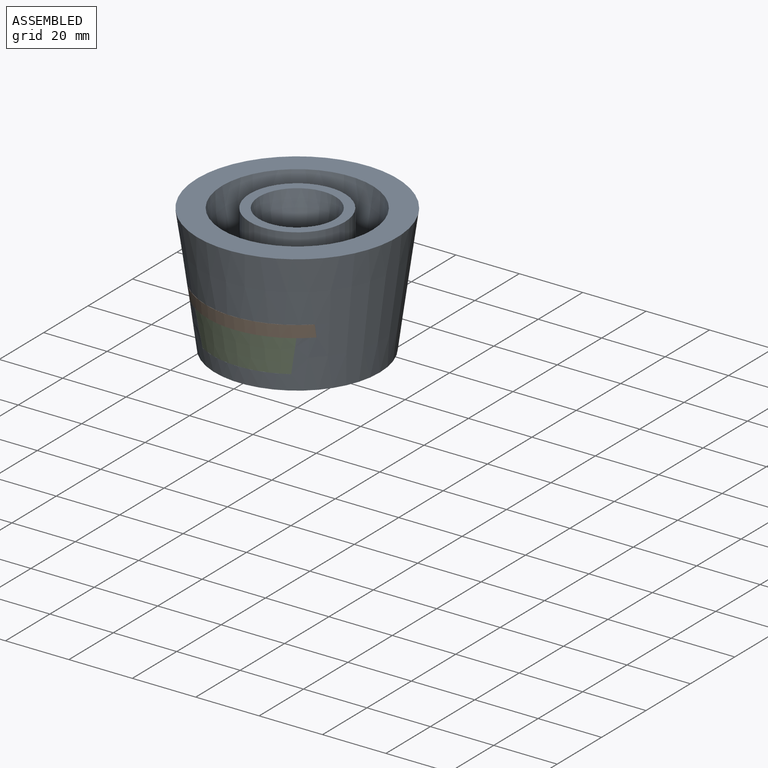
[diagram: assembled view]
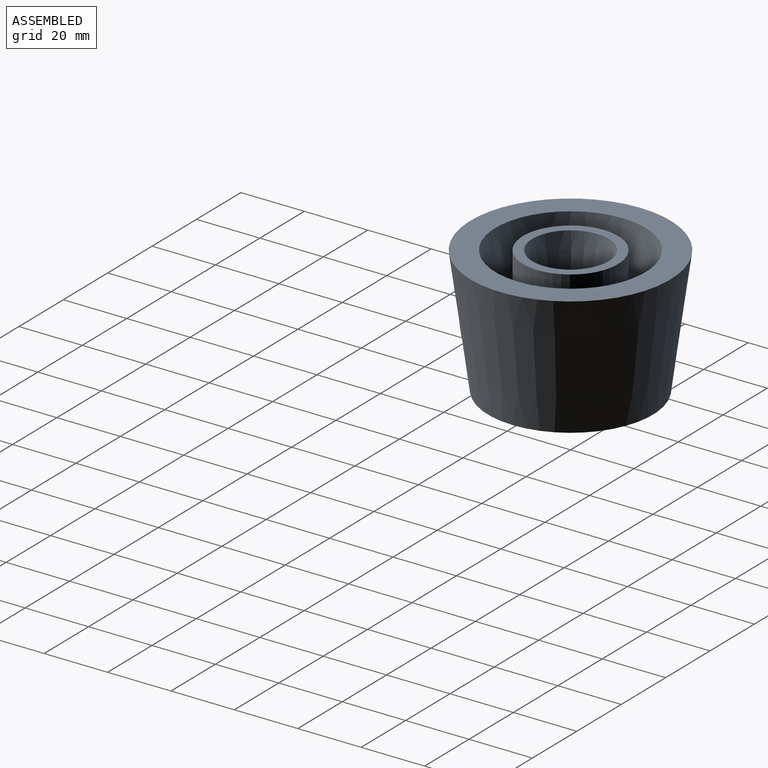
[diagram: assembled view, second angle]
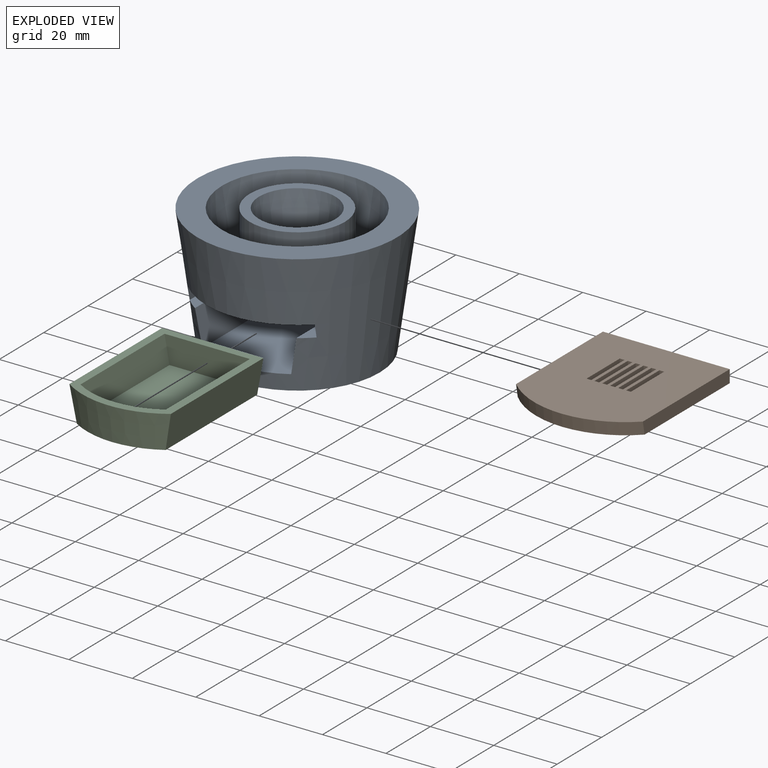
[diagram: exploded view]
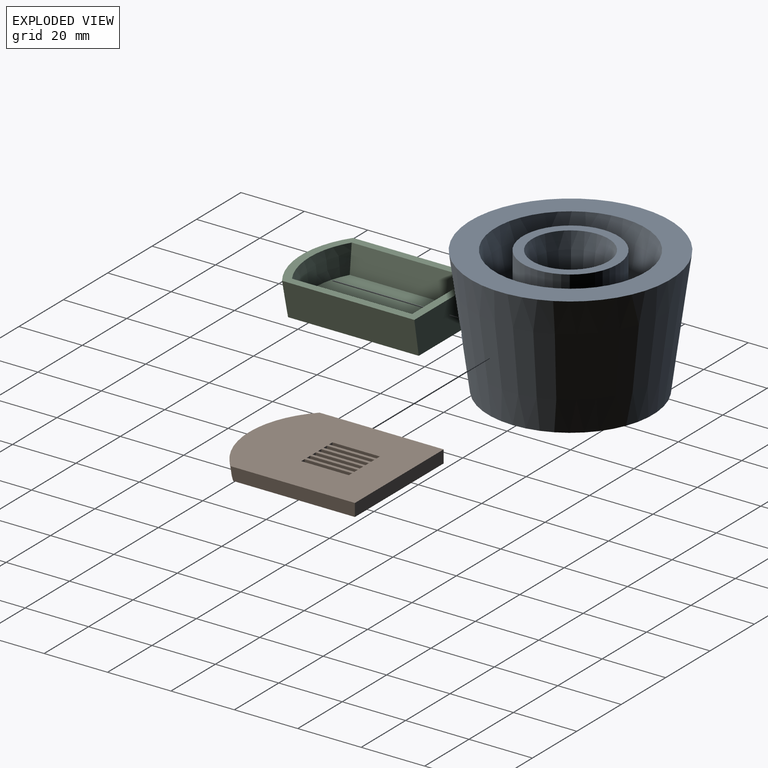
[diagram: exploded view, second angle]
ASSEMBLY  parts=3 mates=4
PART A: 17 faces, bbox 63x63x40 mm
  f0: cone r=7mm half-angle=9.5deg, axis (0,0,1), area 1318.7mm2, adj f1,f14
  f1: plane 30x30mm, normal (0,0,1), area 252.6mm2, adj f0,f2
  f2: cylinder r=15mm len=30mm, axis (0,0,-1), area 1589mm2, adj f1,f3
  f3: plane 41.65x41.65mm, normal (0,0,1), area 655.8mm2, adj f2,f4
  f4: cone r=20.83mm half-angle=9.6deg, axis (0,0,1), area 2390.7mm2, adj f3,f5
  f5: plane 63x63mm, normal (0,0,1), area 1356mm2, adj f4,f6
  f6: cone r=31.5mm half-angle=7.8deg, axis (0,0,1), area 6762.1mm2, adj f5,f7,f8,f9,f10,f11,f12,f13
  f7: plane 52x52mm, normal (0,0,-1), area 2123.7mm2, adj f6
  f8: plane 36.72x4mm, normal (0,0,1), area 140.6mm2, adj f6,f9,f15,f16
  f9: plane 36.72x11mm, normal (0.98,0,0.18), area 407.8mm2, adj f6,f8,f10,f16
  f10: plane 40.19x28mm, normal (0,0,1), area 1089.4mm2, adj f6,f9,f11,f16
  f11: plane 36.72x11mm, normal (-0.98,0,0.18), area 407.8mm2, adj f6,f10,f12,f16
  f12: plane 36.72x4mm, normal (0,0,1), area 140.6mm2, adj f6,f11,f13,f16
  f13: plane 34.16x4.01mm, normal (-1,0,0), area 135.1mm2, adj f6,f12,f14,f16
  f14: plane 42.25x40mm, normal (0,0,-1), area 1352.5mm2, adj f0,f6,f13,f15,f16
  f15: plane 34.16x4.01mm, normal (1,0,0), area 135.1mm2, adj f6,f8,f14,f16
  f16: plane 40x15mm, normal (0,-1,0), area 490mm2, adj f8,f9,f10,f11,f12,f13,f14,f15
PART B: 30 faces, bbox 40.8x47.3x4 mm
  f0: plane 47.25x40mm, normal (0,0,1), area 1654mm2, adj f2,f3,f4,f5,f6,f7,f8,f9
  f1: plane 46.7x40mm, normal (0,0,-1), area 1629.6mm2, adj f2,f3,f4,f5,f6,f7,f8,f9
  f2: plane 40x4mm, normal (0,1,0), area 160mm2, adj f0,f1,f3,f4
  f3: plane 39.16x4.01mm, normal (-1,0,0), area 155.1mm2, adj f0,f1,f2,f29
  f4: plane 39.16x4.01mm, normal (1,0,0), area 155.1mm2, adj f0,f1,f2,f29
  f5: plane 15x4mm, normal (1,0,0), area 60mm2, adj f0,f1,f6,f7
  f6: plane 4x1.5mm, normal (0,-1,0), area 6mm2, adj f0,f1,f5,f8
  f7: plane 4x1.5mm, normal (0,1,0), area 6mm2, adj f0,f1,f5,f8
  f8: plane 15x4mm, normal (-1,0,0), area 60mm2, adj f0,f1,f6,f7
  f9: plane 15x4mm, normal (1,0,0), area 60mm2, adj f0,f1,f10,f11
  f10: plane 4x1.5mm, normal (0,-1,0), area 6mm2, adj f0,f1,f9,f12
  f11: plane 4x1.5mm, normal (0,1,0), area 6mm2, adj f0,f1,f9,f12
  f12: plane 15x4mm, normal (-1,0,0), area 60mm2, adj f0,f1,f10,f11
  f13: plane 15x4mm, normal (1,0,0), area 60mm2, adj f0,f1,f14,f15
  f14: plane 4x1.5mm, normal (0,-1,0), area 6mm2, adj f0,f1,f13,f16
  f15: plane 4x1.5mm, normal (0,1,0), area 6mm2, adj f0,f1,f13,f16
  f16: plane 15x4mm, normal (-1,0,0), area 60mm2, adj f0,f1,f14,f15
  f17: plane 15x4mm, normal (1,0,0), area 60mm2, adj f0,f1,f18,f19
  f18: plane 4x1.5mm, normal (0,-1,0), area 6mm2, adj f0,f1,f17,f20
  f19: plane 4x1.5mm, normal (0,1,0), area 6mm2, adj f0,f1,f17,f20
  f20: plane 15x4mm, normal (-1,0,0), area 60mm2, adj f0,f1,f18,f19
  f21: plane 15x4mm, normal (1,0,0), area 60mm2, adj f0,f1,f22,f23
  f22: plane 4x1.5mm, normal (0,-1,0), area 6mm2, adj f0,f1,f21,f24
  f23: plane 4x1.5mm, normal (0,1,0), area 6mm2, adj f0,f1,f21,f24
  f24: plane 15x4mm, normal (-1,0,0), area 60mm2, adj f0,f1,f22,f23
  f25: plane 15x4mm, normal (1,0,0), area 60mm2, adj f0,f1,f26,f27
  f26: plane 4x1.5mm, normal (0,-1,0), area 6mm2, adj f0,f1,f25,f28
  f27: plane 4x1.5mm, normal (0,1,0), area 6mm2, adj f0,f1,f25,f28
  f28: plane 15x4mm, normal (-1,0,0), area 60mm2, adj f0,f1,f26,f27
  f29: cone r=26mm half-angle=7.8deg, axis (0,0,1), area 179.1mm2, adj f0,f1,f3,f4
PART C: 11 faces, bbox 32x46.7x11 mm
  f0: plane 46.7x32mm, normal (0,0,1), area 354.6mm2, adj f1,f3,f4,f5,f6,f8,f9,f10
  f1: plane 41.72x11mm, normal (-0.98,0,-0.18), area 463.7mm2, adj f0,f2,f4,f5
  f2: plane 45.19x28mm, normal (0,0,-1), area 1229.4mm2, adj f1,f3,f4,f5
  f3: plane 41.72x11mm, normal (0.98,0,-0.18), area 463.7mm2, adj f0,f2,f4,f5
  f4: plane 32x11mm, normal (0,1,0), area 330mm2, adj f0,f1,f2,f3
  f5: cone r=31.5mm half-angle=7.8deg, axis (0,0,1), area 352.5mm2, adj f0,f1,f2,f3
  f6: plane 37.87x8.5mm, normal (0.98,0,0.18), area 325.2mm2, adj f0,f7,f9,f10
  f7: plane 40.51x23.83mm, normal (0,0,1), area 941.3mm2, adj f6,f8,f9,f10
  f8: plane 37.87x8.5mm, normal (-0.98,0,0.18), area 325.2mm2, adj f0,f7,f9,f10
  f9: plane 26.92x8.5mm, normal (0,-1,0), area 215.7mm2, adj f0,f6,f7,f8
  f10: cone r=29.02mm half-angle=7.8deg, axis (0,0,1), area 228.3mm2, adj f0,f6,f7,f8
PLACE A t=(0,0,10)mm
PLACE B t=(0,-0.04,16)mm
PLACE C t=(0,0.03,5)mm
MATE planar B.f4 <-> A.f13  axis (1,0,0) through (20,-0.92,18.01)mm
MATE planar A.f10 <-> C.f5  axis (0,0,1) through (0,-5.97,5)mm
MATE planar C.f3 <-> A.f11  axis (0.98,0,-0.18) through (15,-2.21,10.51)mm
MATE planar B.f1 <-> A.f8  axis (0,0,-1) through (0,-3.96,16)mm
